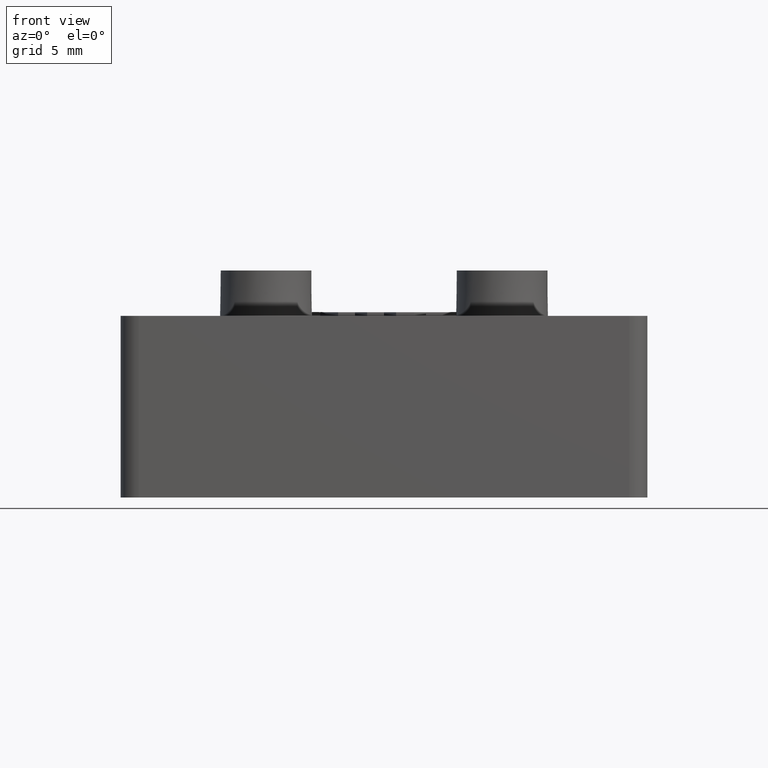
[diagram: clean part render]
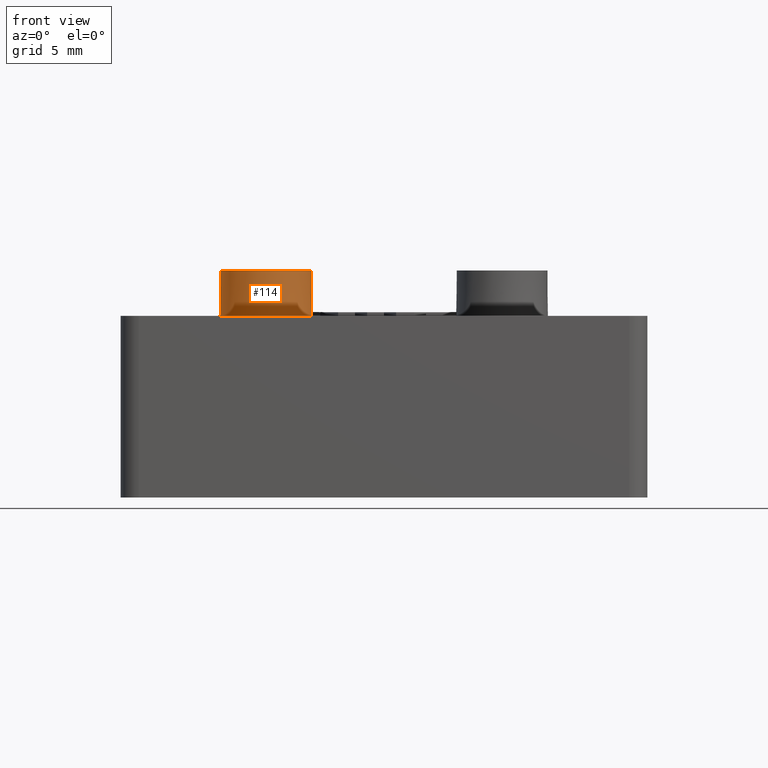
[diagram: same view with one face highlighted and labeled with its STEP entity id]
A machine part, front view. The second image highlights one B-rep face of the part: STEP entity #114.
In plain terms, the highlighted conical surface has half-angle 1 deg.
Its self-contained STEP definition (entity closure, byte-faithful):
#114 = ADVANCED_FACE( '', ( #375, #376 ), #377, .T. );
#375 = FACE_OUTER_BOUND( '', #787, .T. );
#376 = FACE_BOUND( '', #788, .T. );
#377 = CONICAL_SURFACE( '', #789, 2.50000000000000, 0.0174532925199433 );
#787 = EDGE_LOOP( '', ( #1522 ) );
#788 = EDGE_LOOP( '', ( #1523 ) );
#789 = AXIS2_PLACEMENT_3D( '', #1524, #1525, #1526 );
#1522 = ORIENTED_EDGE( '', *, *, #2754, .F. );
#1523 = ORIENTED_EDGE( '', *, *, #2834, .T. );
#1524 = CARTESIAN_POINT( '', ( -6.49999999999999, 0.000165124598785068, 12.5000000000000 ) );
#1525 = DIRECTION( '', ( 0.000000000000000, -6.12303176911189E-017, -1.00000000000000 ) );
#1526 = DIRECTION( '', ( 0.000000000000000, 1.00000000000000, -6.12303176911189E-017 ) );
#2754 = EDGE_CURVE( '', #3374, #3374, #3375, .T. );
#2834 = EDGE_CURVE( '', #3505, #3505, #3506, .T. );
#3374 = VERTEX_POINT( '', #4303 );
#3375 = CIRCLE( '', #4304, 2.54363766232054 );
#3505 = VERTEX_POINT( '', #4508 );
#3506 = CIRCLE( '', #4509, 2.50000000000000 );
#4303 = CARTESIAN_POINT( '', ( -6.49999999999999, 2.54380278691933, 9.99999999999999 ) );
#4304 = AXIS2_PLACEMENT_3D( '', #5276, #5277, #5278 );
#4508 = CARTESIAN_POINT( '', ( -3.99999999999999, 0.000165124598785068, 12.5000000000000 ) );
#4509 = AXIS2_PLACEMENT_3D( '', #5368, #5369, #5370 );
#5276 = CARTESIAN_POINT( '', ( -6.49999999999999, 0.000165124598784915, 9.99999999999999 ) );
#5277 = DIRECTION( '', ( 0.000000000000000, -6.12303176911189E-017, -1.00000000000000 ) );
#5278 = DIRECTION( '', ( 0.000000000000000, 1.00000000000000, -6.12303176911189E-017 ) );
#5368 = CARTESIAN_POINT( '', ( -6.49999999999999, 0.000165124598785068, 12.5000000000000 ) );
#5369 = DIRECTION( '', ( 0.000000000000000, -6.12303176911189E-017, -1.00000000000000 ) );
#5370 = DIRECTION( '', ( 1.00000000000000, 0.000000000000000, 0.000000000000000 ) );